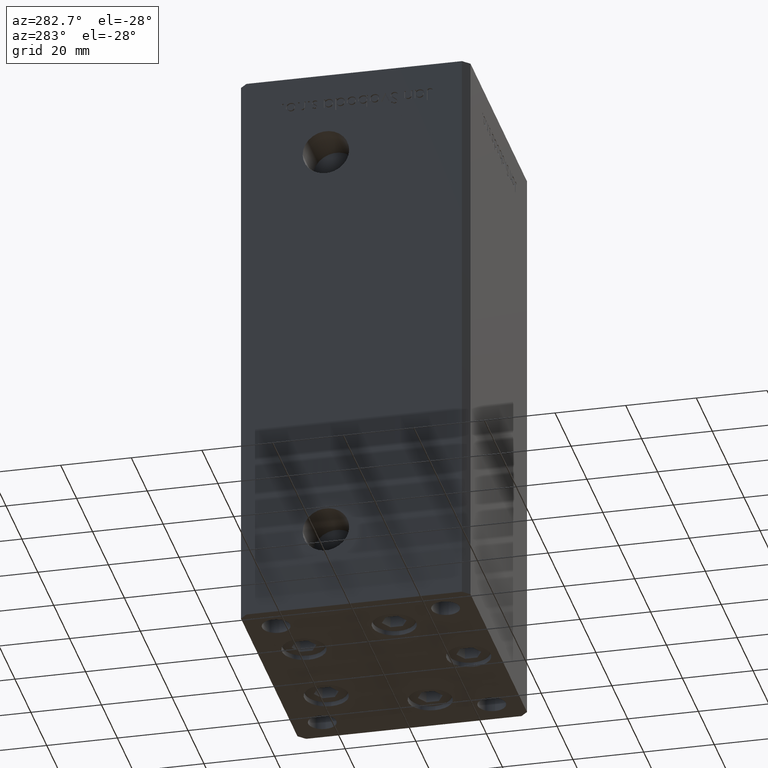
[diagram: clean part render]
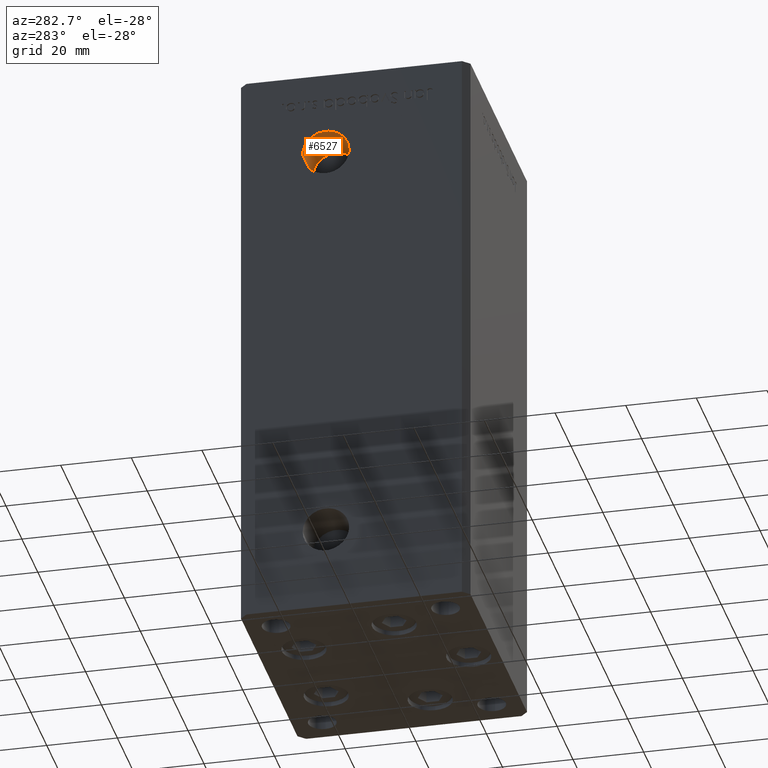
[diagram: same view with one face highlighted and labeled with its STEP entity id]
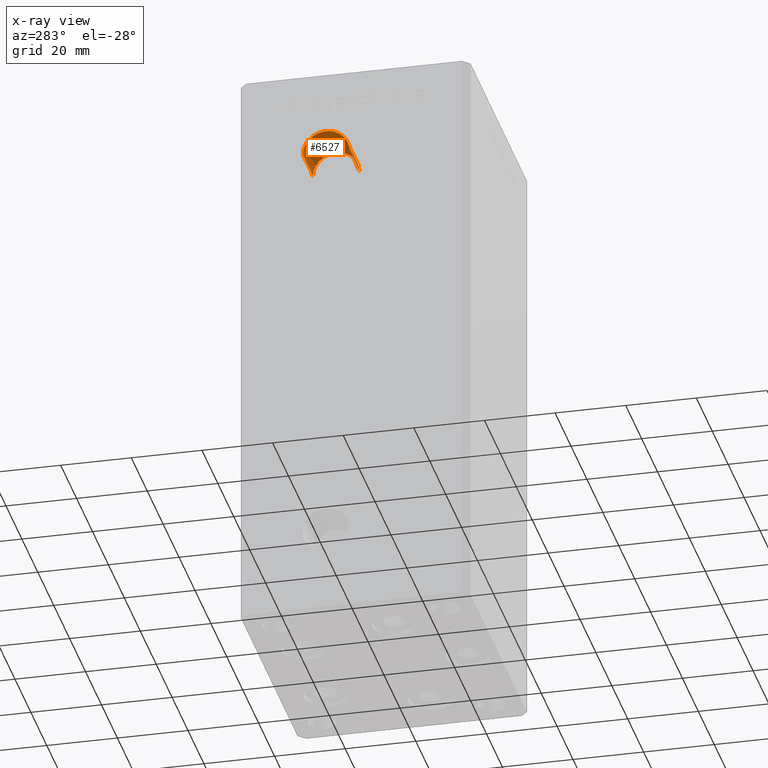
[diagram: x-ray of the same camera — body ghosted, the highlighted face saturated]
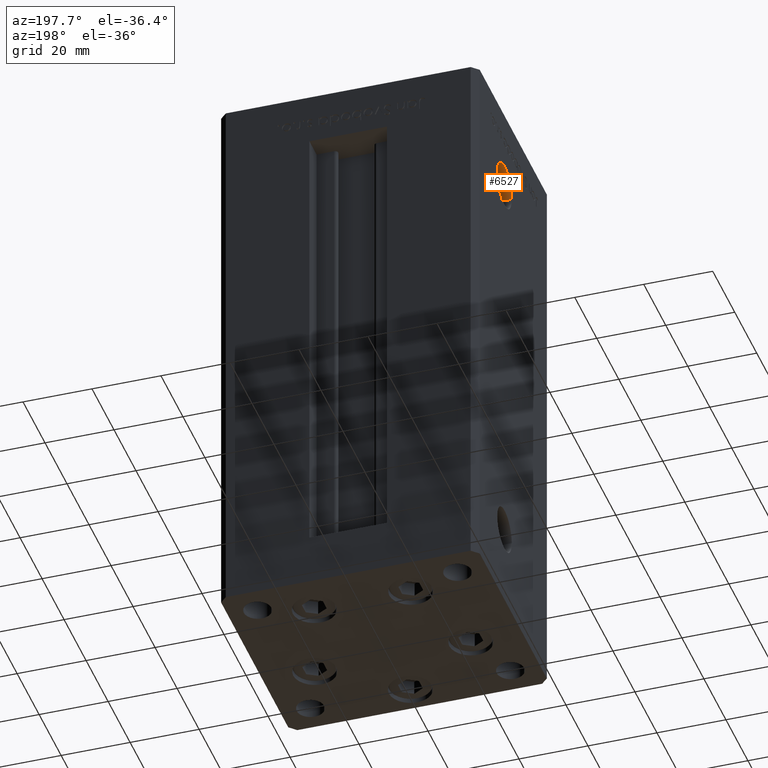
[diagram: same view with one face highlighted and labeled with its STEP entity id]
A machine part, auxiliary view. The second image highlights one B-rep face of the part: STEP entity #6527.
The next image is the same camera in x-ray: the body ghosted, the highlighted face saturated — about 0% of this face is hidden behind the body in this view.
A second angle (auxiliary view) of the same face is appended — the face is thin or edge-on in the first view.
In plain terms, the highlighted cylindrical surface (edge-blend (fillet) strip) has radius 6.58 mm, axis along (-1, -0, -0).
Its self-contained STEP definition (entity closure, byte-faithful):
#966 = VERTEX_POINT ( 'NONE', #49978 ) ;
#2503 = CIRCLE ( 'NONE', #31982, 6.580000000000015170 ) ;
#3742 = VERTEX_POINT ( 'NONE', #20318 ) ;
#3938 = DIRECTION ( 'NONE',  ( -1.000000000000000000, -2.275047181608927644E-16, 0.000000000000000000 ) ) ;
#3979 = DIRECTION ( 'NONE',  ( -1.000000000000000000, -2.275047181608927644E-16, -0.000000000000000000 ) ) ;
#4763 = ORIENTED_EDGE ( 'NONE', *, *, #47967, .T. ) ;
#6527 = ADVANCED_FACE ( 'NONE', ( #6748 ), #50518, .F. ) ;
#6748 = FACE_OUTER_BOUND ( 'NONE', #20522, .T. ) ;
#8454 = CIRCLE ( 'NONE', #50534, 6.580000000000015170 ) ;
#11228 = EDGE_CURVE ( 'NONE', #966, #3742, #15140, .T. ) ;
#12115 = VECTOR ( 'NONE', #43344, 1000.000000000000000 ) ;
#12876 = LINE ( 'NONE', #41847, #44556 ) ;
#12956 = ORIENTED_EDGE ( 'NONE', *, *, #46295, .F. ) ;
#15140 = LINE ( 'NONE', #31210, #12115 ) ;
#15556 = DIRECTION ( 'NONE',  ( 0.000000000000000000, -1.000000000000000000, 0.000000000000000000 ) ) ;
#17201 = CARTESIAN_POINT ( 'NONE',  ( -24.50000000000000000, 1.419999999999979501, 127.0000000000000000 ) ) ;
#18800 = CARTESIAN_POINT ( 'NONE',  ( -24.50000000000000000, 7.999999999999994671, 127.0000000000000000 ) ) ;
#20318 = CARTESIAN_POINT ( 'NONE',  ( -37.50000000000000000, 14.58000000000000718, 127.0000000000000000 ) ) ;
#20522 = EDGE_LOOP ( 'NONE', ( #50802, #12956, #38581, #4763 ) ) ;
#22900 = AXIS2_PLACEMENT_3D ( 'NONE', #26518, #33905, #49994 ) ;
#26518 = CARTESIAN_POINT ( 'NONE',  ( -24.50000000000000000, 7.999999999999994671, 127.0000000000000000 ) ) ;
#31210 = CARTESIAN_POINT ( 'NONE',  ( -24.50000000000000000, 14.58000000000000895, 127.0000000000000000 ) ) ;
#31982 = AXIS2_PLACEMENT_3D ( 'NONE', #18800, #51232, #39107 ) ;
#33905 = DIRECTION ( 'NONE',  ( -1.000000000000000000, -2.275047181608927644E-16, -0.000000000000000000 ) ) ;
#38581 = ORIENTED_EDGE ( 'NONE', *, *, #40036, .T. ) ;
#39107 = DIRECTION ( 'NONE',  ( 0.000000000000000000, -1.000000000000000000, 0.000000000000000000 ) ) ;
#40036 = EDGE_CURVE ( 'NONE', #50640, #44550, #12876, .T. ) ;
#41050 = CARTESIAN_POINT ( 'NONE',  ( -37.50000000000000000, 1.419999999999975948, 127.0000000000000000 ) ) ;
#41847 = CARTESIAN_POINT ( 'NONE',  ( -24.50000000000000000, 1.419999999999979501, 127.0000000000000000 ) ) ;
#43344 = DIRECTION ( 'NONE',  ( -1.000000000000000000, -2.275047181608927644E-16, -0.000000000000000000 ) ) ;
#43506 = CARTESIAN_POINT ( 'NONE',  ( -37.50000000000000000, 7.999999999999991118, 127.0000000000000000 ) ) ;
#44550 = VERTEX_POINT ( 'NONE', #41050 ) ;
#44556 = VECTOR ( 'NONE', #3979, 1000.000000000000000 ) ;
#46295 = EDGE_CURVE ( 'NONE', #50640, #966, #2503, .T. ) ;
#47967 = EDGE_CURVE ( 'NONE', #44550, #3742, #8454, .T. ) ;
#49978 = CARTESIAN_POINT ( 'NONE',  ( -24.50000000000000000, 14.58000000000000895, 127.0000000000000000 ) ) ;
#49994 = DIRECTION ( 'NONE',  ( 0.000000000000000000, -1.000000000000000000, 0.000000000000000000 ) ) ;
#50518 = CYLINDRICAL_SURFACE ( 'NONE', #22900, 6.580000000000015170 ) ;
#50534 = AXIS2_PLACEMENT_3D ( 'NONE', #43506, #3938, #15556 ) ;
#50640 = VERTEX_POINT ( 'NONE', #17201 ) ;
#50802 = ORIENTED_EDGE ( 'NONE', *, *, #11228, .F. ) ;
#51232 = DIRECTION ( 'NONE',  ( -1.000000000000000000, -2.275047181608927644E-16, 0.000000000000000000 ) ) ;